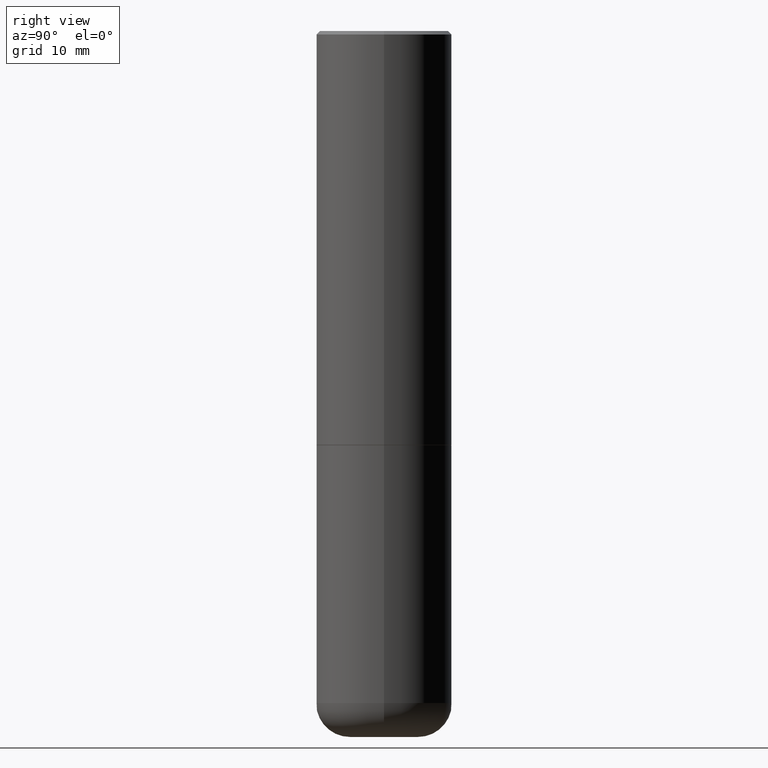
[diagram: clean part render]
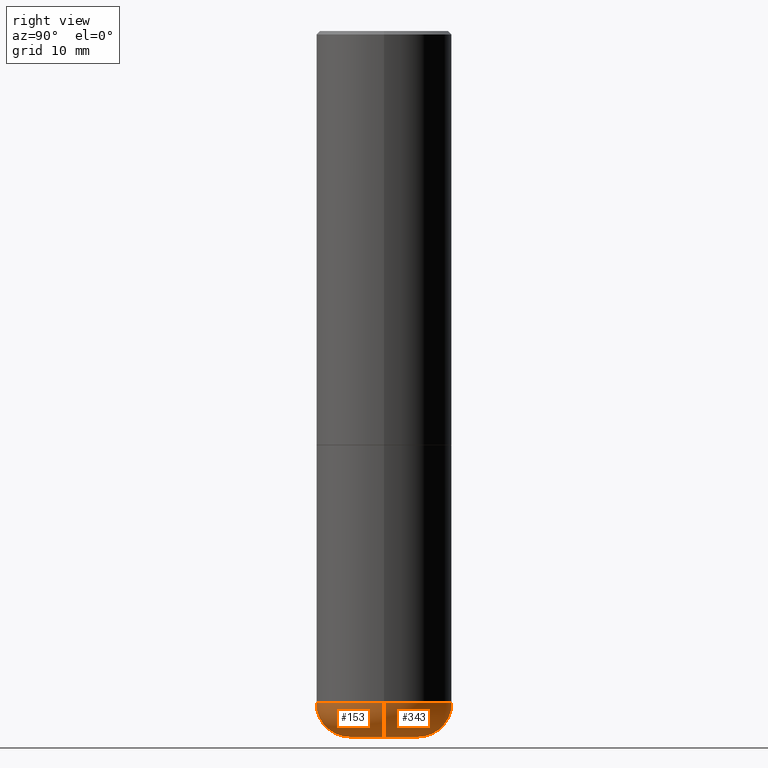
[diagram: same view with one multi-face feature highlighted, each face labeled with its STEP entity id]
A machine part, right view. The highlighted faces form ONE feature: a constant-radius fillet chain: 2 tangent blend faces with common blend radius 5.0013 mm. The faces share edges in the B-rep.
Their STEP definitions:
[1] entity #153 (Torus):
#17 = AXIS2_PLACEMENT_3D ( 'NONE', #79, #168, #321 ) ;
#29 = ORIENTED_EDGE ( 'NONE', *, *, #392, .T. ) ;
#33 = EDGE_CURVE ( 'NONE', #280, #196, #186, .T. ) ;
#50 = TOROIDAL_SURFACE ( 'NONE', #410, 0.1968000000000000305, 0.1968999999999998807 ) ;
#57 = DIRECTION ( 'NONE',  ( 1.000000000000000000, -6.982962677686269077E-15, 4.883557194083114022E-29 ) ) ;
#67 = VERTEX_POINT ( 'NONE', #403 ) ;
#79 = CARTESIAN_POINT ( 'NONE',  ( 9.531459218987190195E-29, -1.360839766627504578E-14, -3.897600000000000620 ) ) ;
#103 = CIRCLE ( 'NONE', #17, 0.3937000000000000499 ) ;
#106 = ORIENTED_EDGE ( 'NONE', *, *, #304, .T. ) ;
#123 = CARTESIAN_POINT ( 'NONE',  ( -0.3936999999999999389, -1.081099091558753178E-14, -3.897600000000000620 ) ) ;
#126 = DIRECTION ( 'NONE',  ( 1.000000000000000000, -6.982962677686269077E-15, 0.000000000000000000 ) ) ;
#136 = CIRCLE ( 'NONE', #283, 0.1968999999999999084 ) ;
#139 = CARTESIAN_POINT ( 'NONE',  ( 1.001297202692504215E-28, -1.429587034189326149E-14, -4.094500000000000028 ) ) ;
#148 = EDGE_CURVE ( 'NONE', #196, #67, #103, .T. ) ;
#153 = ADVANCED_FACE ( 'NONE', ( #293 ), #50, .T. ) ;
#168 = DIRECTION ( 'NONE',  ( -2.445468806185136597E-29, 3.491481338843145583E-15, 1.000000000000000000 ) ) ;
#176 = CARTESIAN_POINT ( 'NONE',  ( -0.1968000000000000305, -1.221004956229916800E-14, -3.897600000000000620 ) ) ;
#183 = CARTESIAN_POINT ( 'NONE',  ( 0.1968000000000000305, -1.498264472124370230E-14, -3.897600000000000620 ) ) ;
#186 = CIRCLE ( 'NONE', #370, 0.1968999999999999084 ) ;
#187 = AXIS2_PLACEMENT_3D ( 'NONE', #139, #258, #230 ) ;
#196 = VERTEX_POINT ( 'NONE', #123 ) ;
#216 = DIRECTION ( 'NONE',  ( -6.982962677686266711E-15, -1.000000000000000000, 3.491481338843145583E-15 ) ) ;
#230 = DIRECTION ( 'NONE',  ( 1.000000000000000000, -6.982962677686269866E-15, 0.000000000000000000 ) ) ;
#258 = DIRECTION ( 'NONE',  ( -2.445468806185136597E-29, 3.491481338843145583E-15, 1.000000000000000000 ) ) ;
#259 = CARTESIAN_POINT ( 'NONE',  ( 9.531459218987190195E-29, -1.360839766627504578E-14, -3.897600000000000620 ) ) ;
#280 = VERTEX_POINT ( 'NONE', #396 ) ;
#283 = AXIS2_PLACEMENT_3D ( 'NONE', #183, #216, #126 ) ;
#293 = FACE_OUTER_BOUND ( 'NONE', #325, .T. ) ;
#295 = CIRCLE ( 'NONE', #187, 0.1968000000000000582 ) ;
#304 = EDGE_CURVE ( 'NONE', #383, #67, #136, .T. ) ;
#321 = DIRECTION ( 'NONE',  ( 1.000000000000000000, -6.982962677686267499E-15, 0.000000000000000000 ) ) ;
#325 = EDGE_LOOP ( 'NONE', ( #388, #29, #106, #374 ) ) ;
#370 = AXIS2_PLACEMENT_3D ( 'NONE', #176, #395, #385 ) ;
#374 = ORIENTED_EDGE ( 'NONE', *, *, #148, .F. ) ;
#383 = VERTEX_POINT ( 'NONE', #398 ) ;
#385 = DIRECTION ( 'NONE',  ( -1.000000000000000000, 7.105427357600995548E-15, 0.000000000000000000 ) ) ;
#388 = ORIENTED_EDGE ( 'NONE', *, *, #33, .F. ) ;
#391 = DIRECTION ( 'NONE',  ( -2.445468806185136597E-29, 3.491481338843145583E-15, 1.000000000000000000 ) ) ;
#392 = EDGE_CURVE ( 'NONE', #280, #383, #295, .T. ) ;
#395 = DIRECTION ( 'NONE',  ( 7.105427357601001859E-15, 1.000000000000000000, -3.491481338843145583E-15 ) ) ;
#396 = CARTESIAN_POINT ( 'NONE',  ( -0.1968000000000000582, -1.185425657675245696E-14, -4.094500000000000028 ) ) ;
#398 = CARTESIAN_POINT ( 'NONE',  ( 0.1968000000000000582, -1.567011739686191959E-14, -4.094500000000000028 ) ) ;
#403 = CARTESIAN_POINT ( 'NONE',  ( 0.3936999999999999389, -1.635759007248013057E-14, -3.897600000000000620 ) ) ;
#410 = AXIS2_PLACEMENT_3D ( 'NONE', #259, #391, #57 ) ;
[2] entity #343 (Torus):
#1 = ORIENTED_EDGE ( 'NONE', *, *, #33, .T. ) ;
#5 = CARTESIAN_POINT ( 'NONE',  ( 9.531459218987190195E-29, -1.360839766627504578E-14, -3.897600000000000620 ) ) ;
#33 = EDGE_CURVE ( 'NONE', #280, #196, #186, .T. ) ;
#36 = TOROIDAL_SURFACE ( 'NONE', #97, 0.1968000000000000305, 0.1968999999999998807 ) ;
#54 = DIRECTION ( 'NONE',  ( -2.445468806185136597E-29, 3.491481338843145583E-15, 1.000000000000000000 ) ) ;
#58 = CARTESIAN_POINT ( 'NONE',  ( 9.531459218987190195E-29, -1.360839766627504578E-14, -3.897600000000000620 ) ) ;
#67 = VERTEX_POINT ( 'NONE', #403 ) ;
#96 = EDGE_CURVE ( 'NONE', #383, #280, #400, .T. ) ;
#97 = AXIS2_PLACEMENT_3D ( 'NONE', #5, #146, #298 ) ;
#115 = FACE_OUTER_BOUND ( 'NONE', #199, .T. ) ;
#123 = CARTESIAN_POINT ( 'NONE',  ( -0.3936999999999999389, -1.081099091558753178E-14, -3.897600000000000620 ) ) ;
#126 = DIRECTION ( 'NONE',  ( 1.000000000000000000, -6.982962677686269077E-15, 0.000000000000000000 ) ) ;
#127 = AXIS2_PLACEMENT_3D ( 'NONE', #58, #54, #213 ) ;
#130 = ORIENTED_EDGE ( 'NONE', *, *, #304, .F. ) ;
#136 = CIRCLE ( 'NONE', #283, 0.1968999999999999084 ) ;
#146 = DIRECTION ( 'NONE',  ( -2.445468806185136597E-29, 3.491481338843145583E-15, 1.000000000000000000 ) ) ;
#162 = ORIENTED_EDGE ( 'NONE', *, *, #96, .T. ) ;
#176 = CARTESIAN_POINT ( 'NONE',  ( -0.1968000000000000305, -1.221004956229916800E-14, -3.897600000000000620 ) ) ;
#183 = CARTESIAN_POINT ( 'NONE',  ( 0.1968000000000000305, -1.498264472124370230E-14, -3.897600000000000620 ) ) ;
#186 = CIRCLE ( 'NONE', #370, 0.1968999999999999084 ) ;
#192 = EDGE_CURVE ( 'NONE', #67, #196, #225, .T. ) ;
#196 = VERTEX_POINT ( 'NONE', #123 ) ;
#199 = EDGE_LOOP ( 'NONE', ( #162, #1, #311, #130 ) ) ;
#213 = DIRECTION ( 'NONE',  ( 1.000000000000000000, -6.982962677686267499E-15, 0.000000000000000000 ) ) ;
#216 = DIRECTION ( 'NONE',  ( -6.982962677686266711E-15, -1.000000000000000000, 3.491481338843145583E-15 ) ) ;
#218 = CARTESIAN_POINT ( 'NONE',  ( 1.001297202692504215E-28, -1.429587034189326149E-14, -4.094500000000000028 ) ) ;
#222 = DIRECTION ( 'NONE',  ( -2.445468806185136597E-29, 3.491481338843145583E-15, 1.000000000000000000 ) ) ;
#225 = CIRCLE ( 'NONE', #127, 0.3937000000000000499 ) ;
#276 = DIRECTION ( 'NONE',  ( 1.000000000000000000, -6.982962677686269866E-15, 0.000000000000000000 ) ) ;
#280 = VERTEX_POINT ( 'NONE', #396 ) ;
#283 = AXIS2_PLACEMENT_3D ( 'NONE', #183, #216, #126 ) ;
#298 = DIRECTION ( 'NONE',  ( 1.000000000000000000, -6.982962677686269077E-15, 4.883557194083114022E-29 ) ) ;
#304 = EDGE_CURVE ( 'NONE', #383, #67, #136, .T. ) ;
#311 = ORIENTED_EDGE ( 'NONE', *, *, #192, .F. ) ;
#343 = ADVANCED_FACE ( 'NONE', ( #115 ), #36, .T. ) ;
#370 = AXIS2_PLACEMENT_3D ( 'NONE', #176, #395, #385 ) ;
#376 = AXIS2_PLACEMENT_3D ( 'NONE', #218, #222, #276 ) ;
#383 = VERTEX_POINT ( 'NONE', #398 ) ;
#385 = DIRECTION ( 'NONE',  ( -1.000000000000000000, 7.105427357600995548E-15, 0.000000000000000000 ) ) ;
#395 = DIRECTION ( 'NONE',  ( 7.105427357601001859E-15, 1.000000000000000000, -3.491481338843145583E-15 ) ) ;
#396 = CARTESIAN_POINT ( 'NONE',  ( -0.1968000000000000582, -1.185425657675245696E-14, -4.094500000000000028 ) ) ;
#398 = CARTESIAN_POINT ( 'NONE',  ( 0.1968000000000000582, -1.567011739686191959E-14, -4.094500000000000028 ) ) ;
#400 = CIRCLE ( 'NONE', #376, 0.1968000000000000582 ) ;
#403 = CARTESIAN_POINT ( 'NONE',  ( 0.3936999999999999389, -1.635759007248013057E-14, -3.897600000000000620 ) ) ;